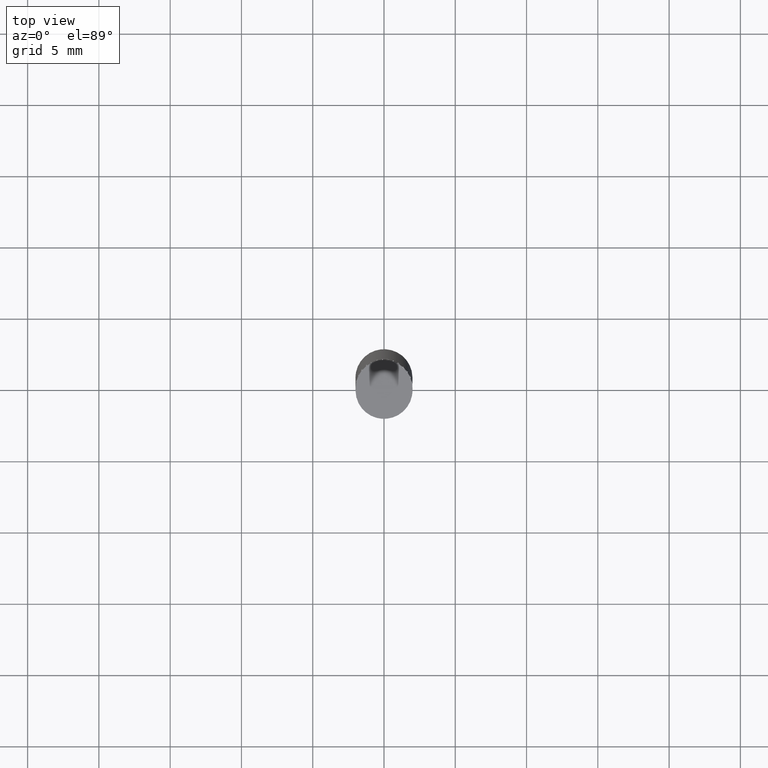
[diagram: clean part render]
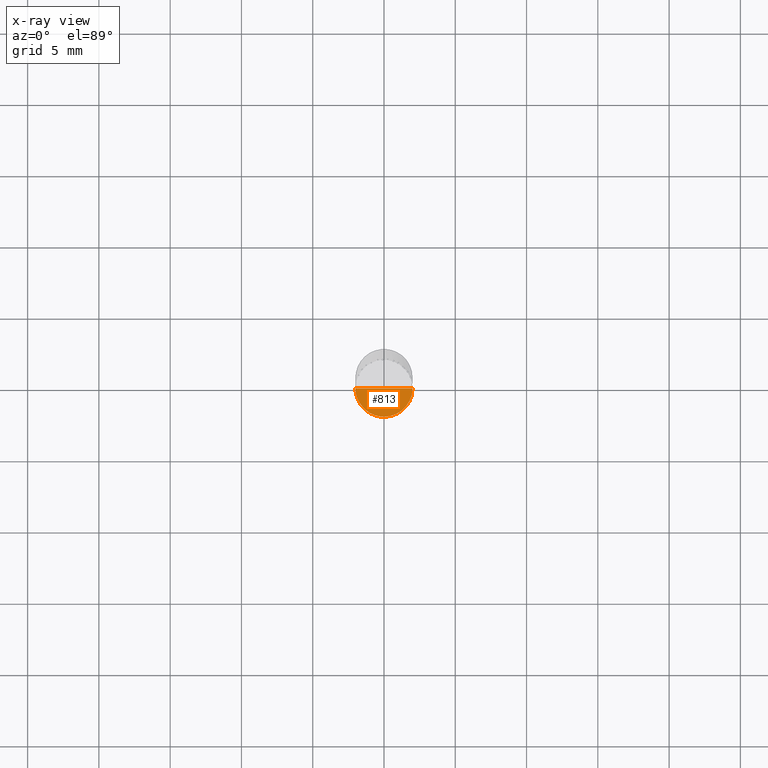
[diagram: x-ray — body ghosted, one internal face saturated and labeled with its STEP entity id]
A machine part, top view, then the same camera in x-ray: the body is ghosted and one INTERNAL B-rep face — a face not visible from any outside direction — is saturated and labeled: STEP entity #813.
In plain terms, the highlighted face is a freeform B-spline surface patch.
Its self-contained STEP definition (entity closure, byte-faithful):
#667=CARTESIAN_POINT('',(2.0,0.0,-3.0));
#671=CARTESIAN_POINT('',(-2.0,0.0,-3.0));
#672=CARTESIAN_POINT('',(0.0,0.0,-3.0));
#675=CARTESIAN_POINT('',(-2.0,-2.0,-3.0));
#676=CARTESIAN_POINT('',(0.0,-2.0,-3.0));
#677=CARTESIAN_POINT('',(2.0,-2.0,-3.0));
#798=(
BOUNDED_SURFACE()
B_SPLINE_SURFACE(1,2,(
(#671,#675,#676,#677,#667),
(#672,#672,#672,#672,#672)
), .UNSPECIFIED.,.F.,.F.,.F.)
B_SPLINE_SURFACE_WITH_KNOTS((2,2),(3,2,3),(
0.0,1.0),(
0.0,0.5,1.0), .UNSPECIFIED.)
GEOMETRIC_REPRESENTATION_ITEM()
RATIONAL_B_SPLINE_SURFACE(((1.0,0.707106781187,1.0,0.707106781187,1.0),
(1.0,0.707106781187,1.0,0.707106781187,1.0)
))
REPRESENTATION_ITEM('')
SURFACE()
);
#799=(
BOUNDED_CURVE()
B_SPLINE_CURVE(2,(#667,#677,#676,#675,#671),.UNSPECIFIED.,.F.,.F.)
B_SPLINE_CURVE_WITH_KNOTS((3,2,3),
(0.0,0.5,1.0),.UNSPECIFIED.)
CURVE()
GEOMETRIC_REPRESENTATION_ITEM()
RATIONAL_B_SPLINE_CURVE((1.0,0.707106781187,1.0,0.707106781187,1.0))
REPRESENTATION_ITEM('')
);
#800=(
BOUNDED_CURVE()
B_SPLINE_CURVE(1,(#671,#672),.UNSPECIFIED.,.F.,.F.)
B_SPLINE_CURVE_WITH_KNOTS((2,2),
(0.0,1.0),.UNSPECIFIED.)
CURVE()
GEOMETRIC_REPRESENTATION_ITEM()
RATIONAL_B_SPLINE_CURVE((1.0,1.0))
REPRESENTATION_ITEM('')
);
#801=(
BOUNDED_CURVE()
B_SPLINE_CURVE(1,(#672,#667),.UNSPECIFIED.,.F.,.F.)
B_SPLINE_CURVE_WITH_KNOTS((2,2),
(0.0,1.0),.UNSPECIFIED.)
CURVE()
GEOMETRIC_REPRESENTATION_ITEM()
RATIONAL_B_SPLINE_CURVE((1.0,1.0))
REPRESENTATION_ITEM('')
);
#802=VERTEX_POINT('',#667);
#803=VERTEX_POINT('',#671);
#804=VERTEX_POINT('',#672);
#805=EDGE_CURVE('',#802,#803,#799,.T.);
#806=EDGE_CURVE('',#803,#804,#800,.T.);
#807=EDGE_CURVE('',#804,#802,#801,.T.);
#808=ORIENTED_EDGE('',*,*,#805,.T.);
#809=ORIENTED_EDGE('',*,*,#806,.T.);
#810=ORIENTED_EDGE('',*,*,#807,.T.);
#811=EDGE_LOOP('',(#808,#809,#810));
#812=FACE_OUTER_BOUND('',#811,.T.);
#813=ADVANCED_FACE('',(#812),#798,.T.);